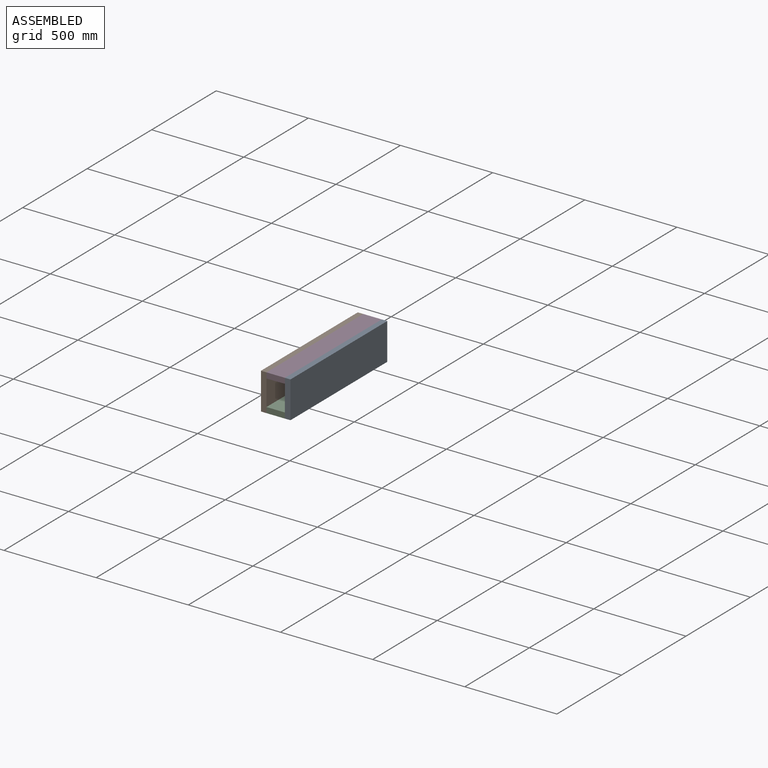
[diagram: assembled view]
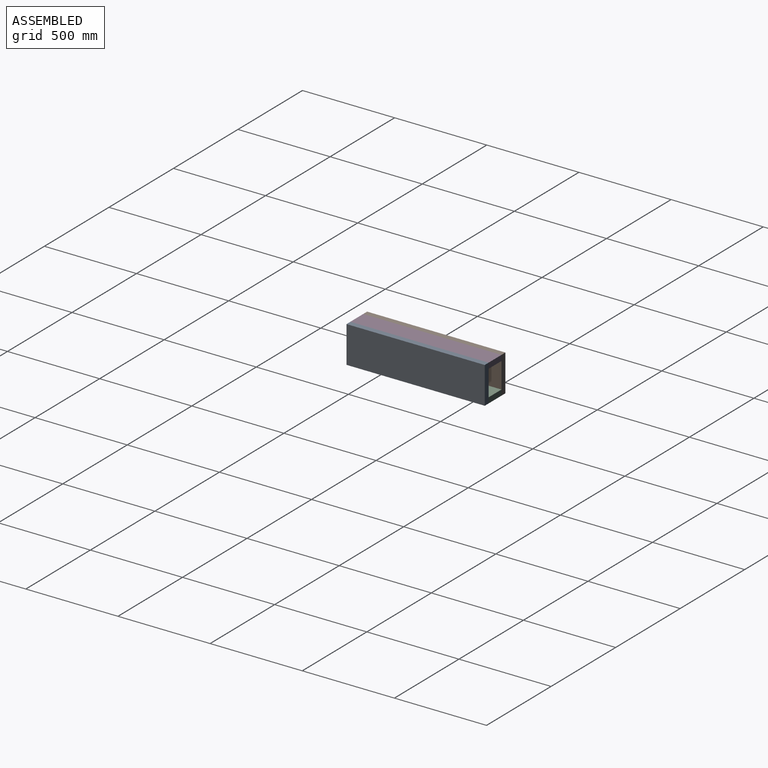
[diagram: assembled view, second angle]
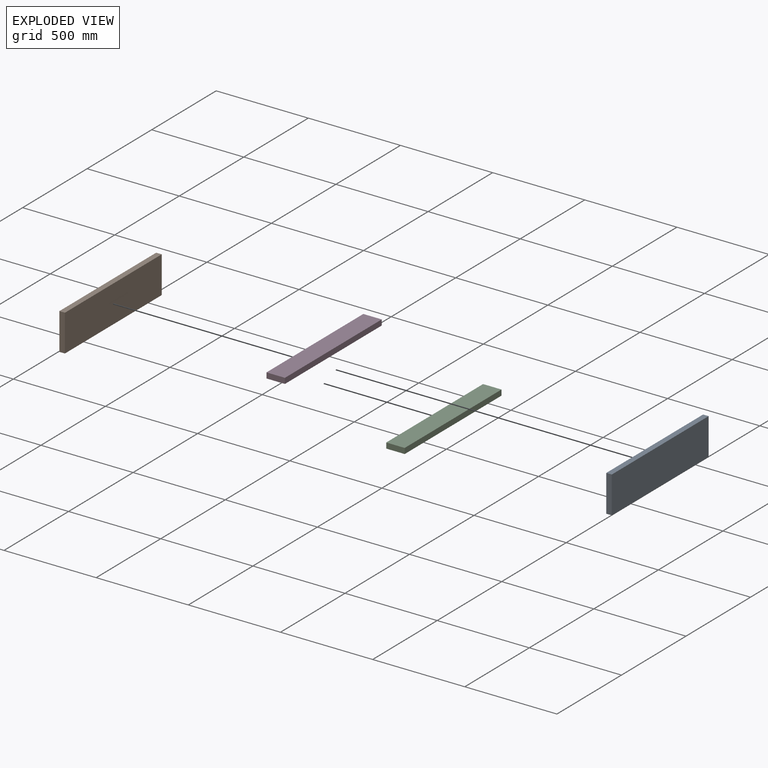
[diagram: exploded view]
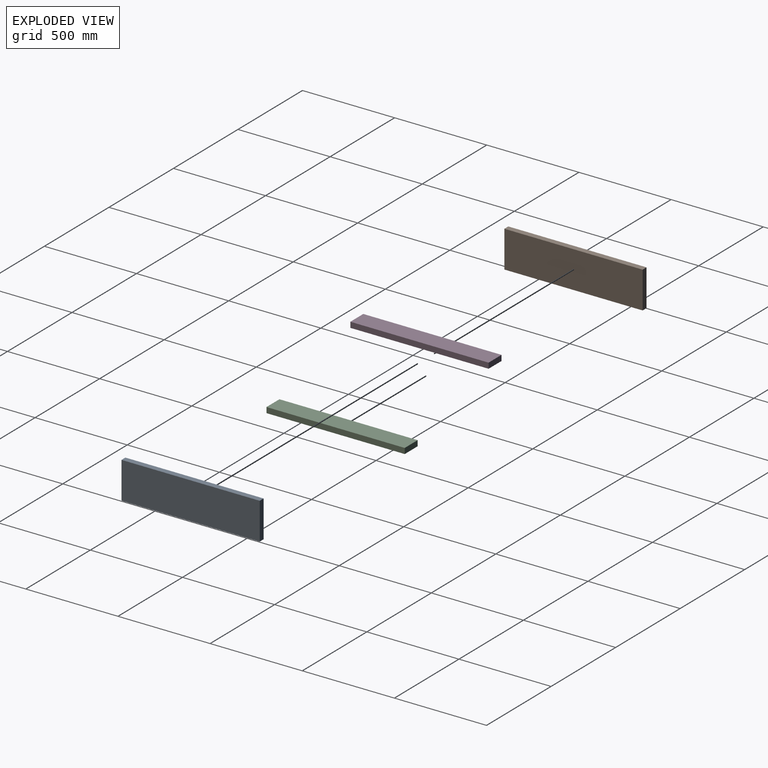
[diagram: exploded view, second angle]
ASSEMBLY  parts=4 mates=3
PART A: 6 faces, bbox 200x750x30 mm
  f0: plane 750x30mm, normal (1,0,0), area 22500mm2, adj f1,f3,f4,f5
  f1: plane 750x200mm, normal (0,0,1), area 150000mm2, adj f0,f2,f4,f5
  f2: plane 750x30mm, normal (-1,0,0), area 22500mm2, adj f1,f3,f4,f5
  f3: plane 750x200mm, normal (0,0,-1), area 150000mm2, adj f0,f2,f4,f5
  f4: plane 200x30mm, normal (0,-1,0), area 6000mm2, adj f0,f1,f2,f3
  f5: plane 200x30mm, normal (0,1,0), area 6000mm2, adj f0,f1,f2,f3
PART B: same geometry as A
PART C: 6 faces, bbox 100x750x30 mm
  f0: plane 750x30mm, normal (1,0,0), area 22500mm2, adj f1,f3,f4,f5
  f1: plane 750x100mm, normal (0,0,1), area 75000mm2, adj f0,f2,f4,f5
  f2: plane 750x30mm, normal (-1,0,0), area 22500mm2, adj f1,f3,f4,f5
  f3: plane 750x100mm, normal (0,0,-1), area 75000mm2, adj f0,f2,f4,f5
  f4: plane 100x30mm, normal (0,-1,0), area 3000mm2, adj f0,f1,f2,f3
  f5: plane 100x30mm, normal (0,1,0), area 3000mm2, adj f0,f1,f2,f3
PART D: same geometry as C
PLACE A rot(axis=(0.71,0,0.71),180deg) t=(257.55,-669.59,-131.13)mm
PLACE B rot(axis=(0.71,0,0.71),180deg) t=(127.55,-669.59,-131.13)mm fixed
PLACE C rot(axis=(0,0,-1),180deg) t=(192.55,-669.59,-216.13)mm
PLACE D t=(192.55,80.41,-46.13)mm
MATE fastened A.f3 <-> D.f0  axis (-1,0,0) through (242.55,-294.59,-31.13)mm
MATE fastened B.f1 <-> D.f2  axis (1,0,0) through (142.55,-294.59,-31.13)mm
MATE fastened B.f1 <-> C.f0  axis (1,0,0) through (142.55,-294.59,-231.13)mm
